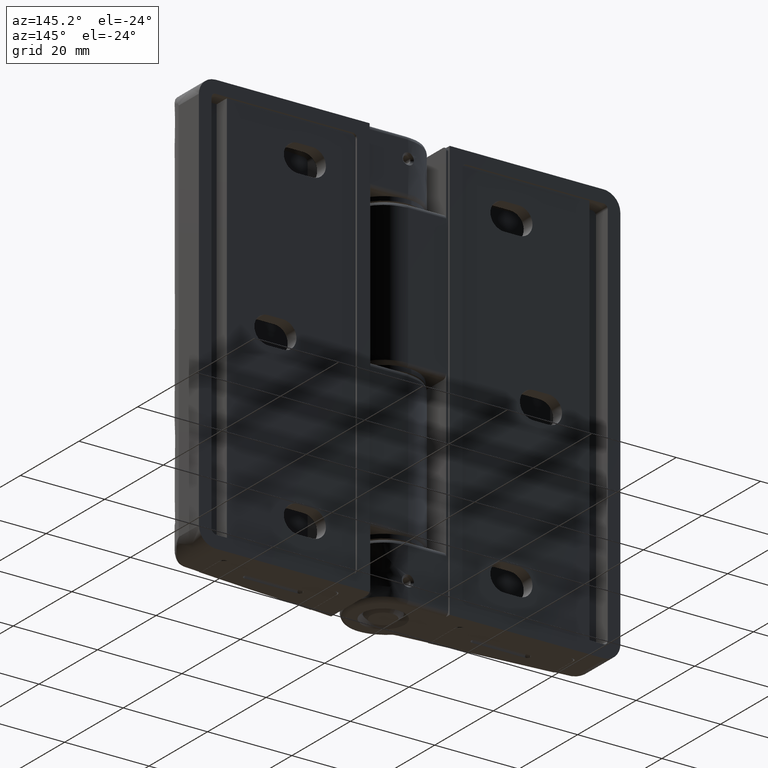
[diagram: clean part render]
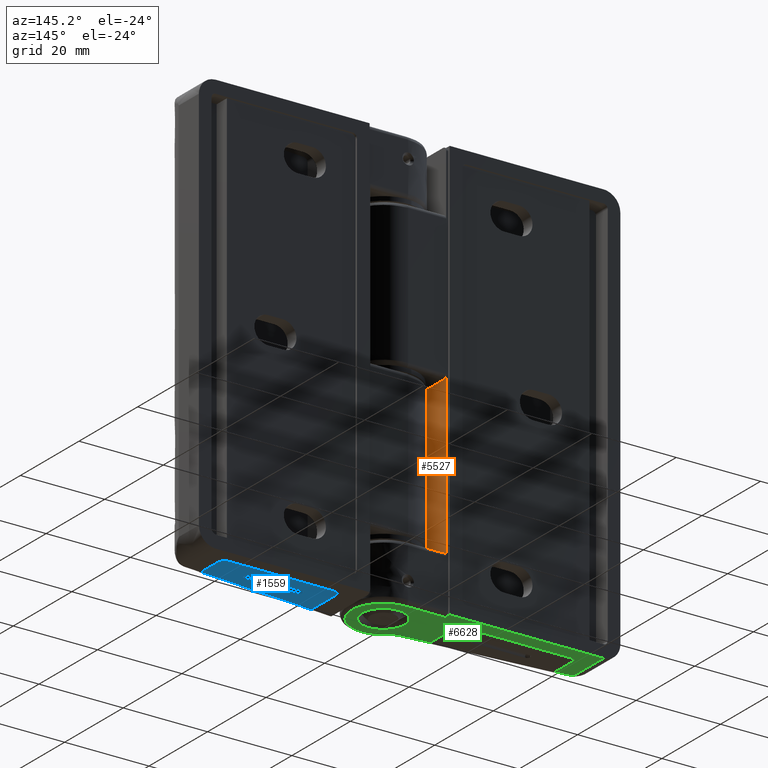
[diagram: same view with three faces highlighted in distinct colors, each labeled with its STEP entity id]
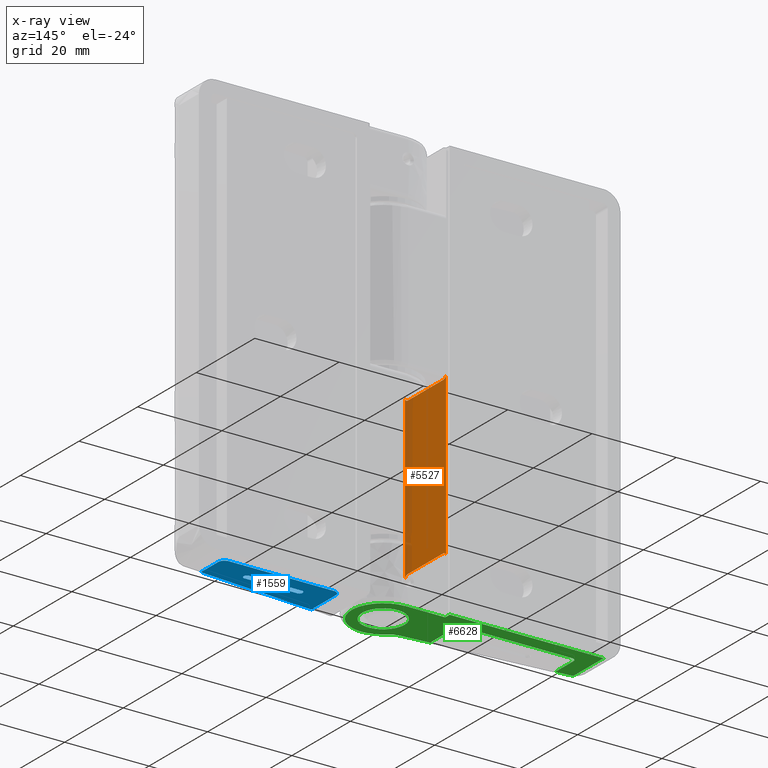
[diagram: x-ray of the same camera — body ghosted, the three highlighted faces saturated]
A machine part, auxiliary view with three faces highlighted in distinct colors.
The next image is the same camera in x-ray (body ghosted, the three faces saturated) — at least one of them is partly hidden behind the body in this view.
Their STEP definitions:

[orange] entity #5527 — the highlighted face is a freeform B-spline surface patch.
#4894=CARTESIAN_POINT('',(-9.0,7.500000000000000,50.500000000000000));
#4895=VERTEX_POINT('',#4894);
#4901=CARTESIAN_POINT('',(-9.0,8.500000000000000,51.500000000000000));
#4902=VERTEX_POINT('',#4901);
#4903=CARTESIAN_POINT('',(-9.0,8.500000000000000,51.500000000000000));
#4904=CARTESIAN_POINT('',(-9.000000000000002,8.500000000000002,50.499999999999993));
#4905=CARTESIAN_POINT('',(-9.0,7.500000000000000,50.499999999999993));
#4913=(BOUNDED_CURVE()B_SPLINE_CURVE(2,(#4903,#4904,#4905),.UNSPECIFIED.,.F.,.U.)CURVE()GEOMETRIC_REPRESENTATION_ITEM()QUASI_UNIFORM_CURVE()RATIONAL_B_SPLINE_CURVE((1.0,0.707106781186548,1.0))REPRESENTATION_ITEM(''));
#4914=EDGE_CURVE('',#4902,#4895,#4913,.T.);
#5086=CARTESIAN_POINT('',(-9.0,-4.583217351706750,50.500000000000000));
#5087=VERTEX_POINT('',#5086);
#5088=CARTESIAN_POINT('',(-9.0,-5.587037191302819,51.500000000000000));
#5089=VERTEX_POINT('',#5088);
#5090=CARTESIAN_POINT('',(-9.0,-4.583217351706750,50.499999999999993));
#5091=CARTESIAN_POINT('',(-9.0,-4.999013143446657,50.499999999999986));
#5092=CARTESIAN_POINT('',(-9.0,-5.293025167374758,50.792893218813440));
#5093=CARTESIAN_POINT('',(-9.0,-5.587037191302872,51.085786437626894));
#5094=CARTESIAN_POINT('',(-9.0,-5.587037191302872,51.500000000000000));
#5102=(BOUNDED_CURVE()B_SPLINE_CURVE(2,(#5090,#5091,#5092,#5093,#5094),.UNSPECIFIED.,.F.,.U.)B_SPLINE_CURVE_WITH_KNOTS((3,2,3),(0.0,0.500000000000000,1.0),.UNSPECIFIED.)CURVE()GEOMETRIC_REPRESENTATION_ITEM()RATIONAL_B_SPLINE_CURVE((1.0,0.923879532511359,1.0,0.923879532511359,1.0))REPRESENTATION_ITEM(''));
#5103=EDGE_CURVE('',#5087,#5089,#5102,.T.);
#5133=CARTESIAN_POINT('',(-9.0,-5.587037191302819,12.499999999999719));
#5134=VERTEX_POINT('',#5133);
#5135=CARTESIAN_POINT('',(-9.0,-4.583217351706750,13.500000000000000));
#5136=VERTEX_POINT('',#5135);
#5137=CARTESIAN_POINT('',(-9.0,-5.587037191302822,12.499999999999719));
#5138=CARTESIAN_POINT('',(-9.0,-5.587037191302939,12.914213562372892));
#5139=CARTESIAN_POINT('',(-9.0,-5.293025167374825,13.207106781186440));
#5140=CARTESIAN_POINT('',(-9.0,-4.999013143446704,13.500000000000000));
#5141=CARTESIAN_POINT('',(-9.0,-4.583217351706750,13.500000000000000));
#5149=(BOUNDED_CURVE()B_SPLINE_CURVE(2,(#5137,#5138,#5139,#5140,#5141),.UNSPECIFIED.,.F.,.U.)B_SPLINE_CURVE_WITH_KNOTS((3,2,3),(0.0,0.500000000000000,1.0),.UNSPECIFIED.)CURVE()GEOMETRIC_REPRESENTATION_ITEM()RATIONAL_B_SPLINE_CURVE((1.0,0.923879532511261,1.0,0.923879532511261,1.0))REPRESENTATION_ITEM(''));
#5150=EDGE_CURVE('',#5134,#5136,#5149,.T.);
#5344=CARTESIAN_POINT('',(-9.0,7.500000000000000,13.500000000000000));
#5345=VERTEX_POINT('',#5344);
#5346=CARTESIAN_POINT('',(-9.0,8.500000000000000,12.500000000000000));
#5347=VERTEX_POINT('',#5346);
#5348=CARTESIAN_POINT('',(-9.0,7.500000000000000,13.500000000000000));
#5349=CARTESIAN_POINT('',(-9.000000000000002,8.500000000000002,13.500000000000002));
#5350=CARTESIAN_POINT('',(-9.0,8.500000000000000,12.500000000000000));
#5358=(BOUNDED_CURVE()B_SPLINE_CURVE(2,(#5348,#5349,#5350),.UNSPECIFIED.,.F.,.U.)CURVE()GEOMETRIC_REPRESENTATION_ITEM()QUASI_UNIFORM_CURVE()RATIONAL_B_SPLINE_CURVE((1.0,0.707106781186548,1.0))REPRESENTATION_ITEM(''));
#5359=EDGE_CURVE('',#5345,#5347,#5358,.T.);
#5463=CARTESIAN_POINT('',(-9.0,-4.583217351706750,50.500000000000000));
#5464=CARTESIAN_POINT('',(-9.0,7.500000000000000,50.500000000000000));
#5465=QUASI_UNIFORM_CURVE('',1,(#5463,#5464),.UNSPECIFIED.,.F.,.U.);
#5466=EDGE_CURVE('',#5087,#4895,#5465,.T.);
#5486=CARTESIAN_POINT('',(-9.0,-4.583217351706750,13.500000000000000));
#5487=CARTESIAN_POINT('',(-9.0,7.500000000000000,13.500000000000000));
#5488=QUASI_UNIFORM_CURVE('',1,(#5486,#5487),.UNSPECIFIED.,.F.,.U.);
#5489=EDGE_CURVE('',#5136,#5345,#5488,.T.);
#5504=CARTESIAN_POINT('',(-9.0,-6.290684671704984,53.448049924410448));
#5505=CARTESIAN_POINT('',(-9.0,-6.290684671704984,10.551949029527760));
#5506=CARTESIAN_POINT('',(-9.0,9.203647858245946,53.448049924410448));
#5507=CARTESIAN_POINT('',(-9.0,9.203647858245946,10.551949029527760));
#5508=B_SPLINE_SURFACE_WITH_KNOTS('',1,1,((#5504,#5506),(#5505,#5507)),.UNSPECIFIED.,.F.,.F.,.U.,(2,2),(2,2),(0.0,42.896100894882693),(0.0,15.494332529950929),.UNSPECIFIED.);
#5509=CARTESIAN_POINT('',(-9.0,-5.587037191302819,51.500000000000000));
#5510=CARTESIAN_POINT('',(-9.0,-5.587037191302819,12.499999999999719));
#5511=QUASI_UNIFORM_CURVE('',1,(#5509,#5510),.UNSPECIFIED.,.F.,.U.);
#5512=EDGE_CURVE('',#5089,#5134,#5511,.T.);
#5513=ORIENTED_EDGE('',*,*,#5512,.T.);
#5514=ORIENTED_EDGE('',*,*,#5150,.T.);
#5515=ORIENTED_EDGE('',*,*,#5489,.T.);
#5516=ORIENTED_EDGE('',*,*,#5359,.T.);
#5517=CARTESIAN_POINT('',(-9.0,8.500000000000000,51.500000000000000));
#5518=CARTESIAN_POINT('',(-9.0,8.500000000000000,12.500000000000000));
#5519=QUASI_UNIFORM_CURVE('',1,(#5517,#5518),.UNSPECIFIED.,.F.,.U.);
#5520=EDGE_CURVE('',#4902,#5347,#5519,.T.);
#5521=ORIENTED_EDGE('',*,*,#5520,.F.);
#5522=ORIENTED_EDGE('',*,*,#4914,.T.);
#5523=ORIENTED_EDGE('',*,*,#5466,.F.);
#5524=ORIENTED_EDGE('',*,*,#5103,.T.);
#5525=EDGE_LOOP('',(#5513,#5514,#5515,#5516,#5521,#5522,#5523,#5524));
#5526=FACE_OUTER_BOUND('',#5525,.T.);
#5527=ADVANCED_FACE('',(#5526),#5508,.T.);

[blue] entity #1559 — the highlighted face is a freeform B-spline surface patch.
#680=CARTESIAN_POINT('',(-14.050000000000001,4.0,100.0));
#681=VERTEX_POINT('',#680);
#682=CARTESIAN_POINT('',(-15.550000000000001,5.500000000000000,100.0));
#683=VERTEX_POINT('',#682);
#684=CARTESIAN_POINT('',(-14.050000000000001,4.0,100.0));
#685=CARTESIAN_POINT('',(-14.050000000000001,5.500000000000001,100.0));
#686=CARTESIAN_POINT('',(-15.550000000000001,5.500000000000000,100.0));
#694=(BOUNDED_CURVE()B_SPLINE_CURVE(2,(#684,#685,#686),.UNSPECIFIED.,.F.,.U.)CURVE()GEOMETRIC_REPRESENTATION_ITEM()QUASI_UNIFORM_CURVE()RATIONAL_B_SPLINE_CURVE((1.0,0.707106781186548,1.0))REPRESENTATION_ITEM(''));
#695=EDGE_CURVE('',#681,#683,#694,.T.);
#741=CARTESIAN_POINT('',(-40.450000000000003,5.500000000000000,100.0));
#742=VERTEX_POINT('',#741);
#743=CARTESIAN_POINT('',(-41.950000000000003,4.0,100.0));
#744=VERTEX_POINT('',#743);
#745=CARTESIAN_POINT('',(-40.450000000000003,5.500000000000000,100.0));
#746=CARTESIAN_POINT('',(-41.949999999999996,5.500000000000001,100.0));
#747=CARTESIAN_POINT('',(-41.950000000000003,4.0,100.0));
#755=(BOUNDED_CURVE()B_SPLINE_CURVE(2,(#745,#746,#747),.UNSPECIFIED.,.F.,.U.)CURVE()GEOMETRIC_REPRESENTATION_ITEM()QUASI_UNIFORM_CURVE()RATIONAL_B_SPLINE_CURVE((1.0,0.707106781186548,1.0))REPRESENTATION_ITEM(''));
#756=EDGE_CURVE('',#742,#744,#755,.T.);
#926=CARTESIAN_POINT('',(-41.950000000000003,-1.901229080388365,100.0));
#927=VERTEX_POINT('',#926);
#948=CARTESIAN_POINT('',(-14.050000000000001,-4.342163449879365,100.0));
#949=VERTEX_POINT('',#948);
#963=CARTESIAN_POINT('',(-41.950000000000003,-1.901229080388365,100.0));
#964=CARTESIAN_POINT('',(-14.050000000000001,-4.342163449879365,100.0));
#965=QUASI_UNIFORM_CURVE('',1,(#963,#964),.UNSPECIFIED.,.F.,.U.);
#966=EDGE_CURVE('',#927,#949,#965,.T.);
#1311=CARTESIAN_POINT('',(-20.750000039269899,0.500000000000000,100.0));
#1312=VERTEX_POINT('',#1311);
#1313=CARTESIAN_POINT('',(-20.750000039269899,2.0,100.0));
#1314=VERTEX_POINT('',#1313);
#1330=CARTESIAN_POINT('',(-20.750000039269899,1.999999999999999,100.0));
#1331=CARTESIAN_POINT('',(-20.316987319924394,2.000000022672487,100.0));
#1332=CARTESIAN_POINT('',(-20.100480953706651,1.625000011336244,100.0));
#1333=CARTESIAN_POINT('',(-19.883974587488918,1.250000000000000,100.0));
#1334=CARTESIAN_POINT('',(-20.100480953706651,0.874999988663757,100.0));
#1335=CARTESIAN_POINT('',(-20.316987319924394,0.499999977327513,100.0));
#1336=CARTESIAN_POINT('',(-20.750000039269899,0.500000000000001,100.0));
#1344=(BOUNDED_CURVE()B_SPLINE_CURVE(2,(#1330,#1331,#1332,#1333,#1334,#1335,#1336),.UNSPECIFIED.,.F.,.U.)B_SPLINE_CURVE_WITH_KNOTS((3,2,2,3),(0.0,0.333333333333333,0.666666666666667,1.0),.UNSPECIFIED.)CURVE()GEOMETRIC_REPRESENTATION_ITEM()RATIONAL_B_SPLINE_CURVE((1.0,0.866025395057794,1.0,0.866025395057794,1.0,0.866025395057794,1.0))REPRESENTATION_ITEM(''));
#1345=EDGE_CURVE('',#1314,#1312,#1344,.T.);
#1382=CARTESIAN_POINT('',(-33.250000039269899,0.500000000000000,100.0));
#1383=VERTEX_POINT('',#1382);
#1384=CARTESIAN_POINT('',(-33.250000039269899,2.0,100.0));
#1385=VERTEX_POINT('',#1384);
#1401=CARTESIAN_POINT('',(-33.250000039269899,0.500000000000001,100.0));
#1402=CARTESIAN_POINT('',(-34.000000000000007,0.500000039269899,99.999999999999986));
#1403=CARTESIAN_POINT('',(-34.0,1.250000000000000,100.0));
#1404=CARTESIAN_POINT('',(-34.000000000000007,1.999999960730101,99.999999999999986));
#1405=CARTESIAN_POINT('',(-33.250000039269899,1.999999999999999,100.0));
#1413=(BOUNDED_CURVE()B_SPLINE_CURVE(2,(#1401,#1402,#1403,#1404,#1405),.UNSPECIFIED.,.F.,.U.)B_SPLINE_CURVE_WITH_KNOTS((3,2,3),(0.0,0.500000000000000,1.0),.UNSPECIFIED.)CURVE()GEOMETRIC_REPRESENTATION_ITEM()RATIONAL_B_SPLINE_CURVE((1.0,0.707106799698556,1.0,0.707106799698556,1.0))REPRESENTATION_ITEM(''));
#1414=EDGE_CURVE('',#1383,#1385,#1413,.T.);
#1438=CARTESIAN_POINT('',(-20.750000039269899,0.500000000000000,100.0));
#1439=CARTESIAN_POINT('',(-33.250000039269899,0.500000000000000,100.0));
#1440=QUASI_UNIFORM_CURVE('',1,(#1438,#1439),.UNSPECIFIED.,.F.,.U.);
#1441=EDGE_CURVE('',#1312,#1383,#1440,.T.);
#1444=CARTESIAN_POINT('',(-33.250000039269899,2.0,100.0));
#1445=CARTESIAN_POINT('',(-20.750000039269899,2.0,100.0));
#1446=QUASI_UNIFORM_CURVE('',1,(#1444,#1445),.UNSPECIFIED.,.F.,.U.);
#1447=EDGE_CURVE('',#1385,#1314,#1446,.T.);
#1471=CARTESIAN_POINT('',(-41.950000000000003,4.0,100.0));
#1472=CARTESIAN_POINT('',(-41.950000000000003,-1.901229080388365,100.0));
#1473=QUASI_UNIFORM_CURVE('',1,(#1471,#1472),.UNSPECIFIED.,.F.,.U.);
#1474=EDGE_CURVE('',#744,#927,#1473,.T.);
#1489=CARTESIAN_POINT('',(-15.550000000000001,5.500000000000000,100.0));
#1490=CARTESIAN_POINT('',(-40.450000000000003,5.500000000000000,100.0));
#1491=QUASI_UNIFORM_CURVE('',1,(#1489,#1490),.UNSPECIFIED.,.F.,.U.);
#1492=EDGE_CURVE('',#683,#742,#1491,.T.);
#1513=CARTESIAN_POINT('',(-14.050000000000001,-4.342163449879365,100.0));
#1514=CARTESIAN_POINT('',(-14.050000000000001,4.0,100.0));
#1515=QUASI_UNIFORM_CURVE('',1,(#1513,#1514),.UNSPECIFIED.,.F.,.U.);
#1516=EDGE_CURVE('',#949,#681,#1515,.T.);
#1540=CARTESIAN_POINT('',(-43.343605731640103,-4.833779679907194,100.0));
#1541=CARTESIAN_POINT('',(-12.656394268359900,-4.833779679907194,100.0));
#1542=CARTESIAN_POINT('',(-43.343605731640103,5.991616318023627,100.0));
#1543=CARTESIAN_POINT('',(-12.656394268359900,5.991616318023627,100.0));
#1544=B_SPLINE_SURFACE_WITH_KNOTS('',1,1,((#1540,#1542),(#1541,#1543)),.UNSPECIFIED.,.F.,.F.,.U.,(2,2),(2,2),(0.0,30.687211463280200),(0.0,10.825395997930819),.UNSPECIFIED.);
#1545=ORIENTED_EDGE('',*,*,#1492,.T.);
#1546=ORIENTED_EDGE('',*,*,#756,.T.);
#1547=ORIENTED_EDGE('',*,*,#1474,.T.);
#1548=ORIENTED_EDGE('',*,*,#966,.T.);
#1549=ORIENTED_EDGE('',*,*,#1516,.T.);
#1550=ORIENTED_EDGE('',*,*,#695,.T.);
#1551=EDGE_LOOP('',(#1545,#1546,#1547,#1548,#1549,#1550));
#1552=FACE_OUTER_BOUND('',#1551,.T.);
#1553=ORIENTED_EDGE('',*,*,#1441,.T.);
#1554=ORIENTED_EDGE('',*,*,#1414,.T.);
#1555=ORIENTED_EDGE('',*,*,#1447,.T.);
#1556=ORIENTED_EDGE('',*,*,#1345,.T.);
#1557=EDGE_LOOP('',(#1553,#1554,#1555,#1556));
#1558=FACE_BOUND('',#1557,.T.);
#1559=ADVANCED_FACE('',(#1552,#1558),#1544,.T.);

[green] entity #6628 — the highlighted face is a freeform B-spline surface patch.
#1921=CARTESIAN_POINT('',(3.465437195004880,3.638869336411837,-1.620683E-013));
#1922=VERTEX_POINT('',#1921);
#1928=CARTESIAN_POINT('',(5.025000000000000,0.0,0.0));
#1929=VERTEX_POINT('',#1928);
#1930=CARTESIAN_POINT('',(5.025000000000000,0.0,0.0));
#1931=CARTESIAN_POINT('',(5.025000000000001,2.153636849951511,0.0));
#1932=CARTESIAN_POINT('',(3.465437195004879,3.638869336411836,-1.620683E-013));
#1940=(BOUNDED_CURVE()B_SPLINE_CURVE(2,(#1930,#1931,#1932),.UNSPECIFIED.,.F.,.U.)B_SPLINE_CURVE_WITH_KNOTS((3,3),(0.0,0.128682976149205),.UNSPECIFIED.)CURVE()GEOMETRIC_REPRESENTATION_ITEM()RATIONAL_B_SPLINE_CURVE((1.0,0.849238515636658,0.853680523245690))REPRESENTATION_ITEM(''));
#1941=EDGE_CURVE('',#1929,#1922,#1940,.T.);
#1943=CARTESIAN_POINT('',(-5.025000000000000,0.0,0.0));
#1944=VERTEX_POINT('',#1943);
#1945=CARTESIAN_POINT('',(-5.025000000000000,0.0,0.0));
#1946=CARTESIAN_POINT('',(-5.025000000000000,-5.025000000000000,0.0));
#1947=CARTESIAN_POINT('',(0.0,-5.025000000000000,0.0));
#1948=CARTESIAN_POINT('',(5.025000000000000,-5.025000000000000,0.0));
#1949=CARTESIAN_POINT('',(5.025000000000000,0.0,0.0));
#1957=(BOUNDED_CURVE()B_SPLINE_CURVE(2,(#1945,#1946,#1947,#1948,#1949),.UNSPECIFIED.,.F.,.U.)B_SPLINE_CURVE_WITH_KNOTS((3,2,3),(0.500000000000000,0.750000000000000,1.0),.UNSPECIFIED.)CURVE()GEOMETRIC_REPRESENTATION_ITEM()RATIONAL_B_SPLINE_CURVE((1.0,0.707106781186547,1.0,0.707106781186547,1.0))REPRESENTATION_ITEM(''));
#1958=EDGE_CURVE('',#1944,#1929,#1957,.T.);
#1960=CARTESIAN_POINT('',(0.043850841862554,5.024808663522669,-1.337847E-010));
#1961=VERTEX_POINT('',#1960);
#1962=CARTESIAN_POINT('',(0.043850841862554,5.024808663522669,-1.337847E-010));
#1963=CARTESIAN_POINT('',(0.021925838856139,5.025000000000000,0.0));
#1964=CARTESIAN_POINT('',(0.0,5.025000000000000,0.0));
#1965=CARTESIAN_POINT('',(-5.025000000000000,5.025000000000000,0.0));
#1966=CARTESIAN_POINT('',(-5.025000000000000,0.0,0.0));
#1974=(BOUNDED_CURVE()B_SPLINE_CURVE(2,(#1962,#1963,#1964,#1965,#1966),.UNSPECIFIED.,.F.,.U.)B_SPLINE_CURVE_WITH_KNOTS((3,2,3),(0.248460105596162,0.250000000000000,0.500000000000000),.UNSPECIFIED.)CURVE()GEOMETRIC_REPRESENTATION_ITEM()RATIONAL_B_SPLINE_CURVE((0.996414027941064,0.998195901485708,1.0,0.707106781186547,1.0))REPRESENTATION_ITEM(''));
#1975=EDGE_CURVE('',#1961,#1944,#1974,.T.);
#2077=CARTESIAN_POINT('',(3.465437195004879,3.638869336411836,-1.620683E-013));
#2078=CARTESIAN_POINT('',(2.028321727537465,5.007490447559227,0.0));
#2079=CARTESIAN_POINT('',(0.043850841862554,5.024808663522669,-1.337847E-010));
#2087=(BOUNDED_CURVE()B_SPLINE_CURVE(2,(#2077,#2078,#2079),.UNSPECIFIED.,.F.,.U.)B_SPLINE_CURVE_WITH_KNOTS((3,3),(0.128682976149205,0.248460105596161),.UNSPECIFIED.)CURVE()GEOMETRIC_REPRESENTATION_ITEM()RATIONAL_B_SPLINE_CURVE((0.853680523245690,0.857815109935497,0.996414027941064))REPRESENTATION_ITEM(''));
#2088=EDGE_CURVE('',#1922,#1961,#2087,.T.);
#3959=CARTESIAN_POINT('',(-42.0,4.499999912733535,0.0));
#3960=VERTEX_POINT('',#3959);
#3961=CARTESIAN_POINT('',(-41.0,5.500000000000000,0.0));
#3962=VERTEX_POINT('',#3961);
#3963=CARTESIAN_POINT('',(-41.999999999999993,4.499999912733535,0.0));
#3964=CARTESIAN_POINT('',(-42.000000036146957,4.914213500666384,0.0));
#3965=CARTESIAN_POINT('',(-41.707106812039903,5.207106750333192,0.0));
#3966=CARTESIAN_POINT('',(-41.414213587932863,5.500000000000000,0.0));
#3967=CARTESIAN_POINT('',(-41.0,5.500000000000000,0.0));
#3975=(BOUNDED_CURVE()B_SPLINE_CURVE(2,(#3963,#3964,#3965,#3966,#3967),.UNSPECIFIED.,.F.,.U.)B_SPLINE_CURVE_WITH_KNOTS((3,2,3),(0.0,0.500000000000000,1.0),.UNSPECIFIED.)CURVE()GEOMETRIC_REPRESENTATION_ITEM()RATIONAL_B_SPLINE_CURVE((1.0,0.923879524162429,1.0,0.923879524162429,1.0))REPRESENTATION_ITEM(''));
#3976=EDGE_CURVE('',#3960,#3962,#3975,.T.);
#4015=CARTESIAN_POINT('',(-15.000000052359800,5.500000000000000,0.0));
#4016=VERTEX_POINT('',#4015);
#4017=CARTESIAN_POINT('',(-15.000000052359800,5.500000000000000,0.0));
#4018=CARTESIAN_POINT('',(-41.0,5.500000000000000,0.0));
#4019=QUASI_UNIFORM_CURVE('',1,(#4017,#4018),.UNSPECIFIED.,.F.,.U.);
#4020=EDGE_CURVE('',#4016,#3962,#4019,.T.);
#4052=CARTESIAN_POINT('',(-14.0,4.500000000000000,0.0));
#4053=VERTEX_POINT('',#4052);
#4054=CARTESIAN_POINT('',(-15.000000052359800,5.499999999999998,0.0));
#4055=CARTESIAN_POINT('',(-14.585786474650870,5.500000021688138,0.0));
#4056=CARTESIAN_POINT('',(-14.292893237325440,5.207106799698532,0.0));
#4057=CARTESIAN_POINT('',(-13.999999999999996,4.914213577708925,0.0));
#4058=CARTESIAN_POINT('',(-14.0,4.500000000000000,0.0));
#4066=(BOUNDED_CURVE()B_SPLINE_CURVE(2,(#4054,#4055,#4056,#4057,#4058),.UNSPECIFIED.,.F.,.U.)B_SPLINE_CURVE_WITH_KNOTS((3,2,3),(0.0,0.500000000000000,1.0),.UNSPECIFIED.)CURVE()GEOMETRIC_REPRESENTATION_ITEM()RATIONAL_B_SPLINE_CURVE((1.0,0.923879527501980,1.0,0.923879527501980,1.0))REPRESENTATION_ITEM(''));
#4067=EDGE_CURVE('',#4016,#4053,#4066,.T.);
#4501=CARTESIAN_POINT('',(-14.0,-4.145773916314075,0.0));
#4502=VERTEX_POINT('',#4501);
#4503=CARTESIAN_POINT('',(-14.0,-4.145773916314075,0.0));
#4504=CARTESIAN_POINT('',(-14.0,4.500000000000000,0.0));
#4505=QUASI_UNIFORM_CURVE('',1,(#4503,#4504),.UNSPECIFIED.,.F.,.U.);
#4506=EDGE_CURVE('',#4502,#4053,#4505,.T.);
#4580=CARTESIAN_POINT('',(-42.0,-1.696090678115215,0.0));
#4581=VERTEX_POINT('',#4580);
#4595=CARTESIAN_POINT('',(-42.0,4.499999912733535,0.0));
#4596=CARTESIAN_POINT('',(-42.0,-1.696090678115215,0.0));
#4597=QUASI_UNIFORM_CURVE('',1,(#4595,#4596),.UNSPECIFIED.,.F.,.U.);
#4598=EDGE_CURVE('',#3960,#4581,#4597,.T.);
#5635=CARTESIAN_POINT('',(-46.000007999999902,-1.340611749982294,0.0));
#5636=VERTEX_POINT('',#5635);
#5707=CARTESIAN_POINT('',(-45.805053181113401,-1.363191571035616,0.0));
#5708=VERTEX_POINT('',#5707);
#5736=CARTESIAN_POINT('',(-45.805053181113401,-1.363191571035611,0.0));
#5737=CARTESIAN_POINT('',(-45.902847248758434,-1.354635696453277,0.0));
#5738=CARTESIAN_POINT('',(-46.000007999999902,-1.340611749982295,0.0));
#5746=(BOUNDED_CURVE()B_SPLINE_CURVE(2,(#5736,#5737,#5738),.UNSPECIFIED.,.F.,.U.)CURVE()GEOMETRIC_REPRESENTATION_ITEM()QUASI_UNIFORM_CURVE()RATIONAL_B_SPLINE_CURVE((1.0,0.999606889775789,1.0))REPRESENTATION_ITEM(''));
#5747=EDGE_CURVE('',#5708,#5636,#5746,.T.);
#5769=CARTESIAN_POINT('',(-4.730546593830150,-5.819959529378361,0.0));
#5770=VERTEX_POINT('',#5769);
#5801=CARTESIAN_POINT('',(-7.448465492888190,-4.718959068690969,0.0));
#5802=VERTEX_POINT('',#5801);
#5816=CARTESIAN_POINT('',(-4.730546593830149,-5.819959529378359,0.0));
#5817=CARTESIAN_POINT('',(-5.920651059299528,-4.852625547585265,0.0));
#5818=CARTESIAN_POINT('',(-7.448465492888190,-4.718959068690964,0.0));
#5826=(BOUNDED_CURVE()B_SPLINE_CURVE(2,(#5816,#5817,#5818),.UNSPECIFIED.,.F.,.U.)CURVE()GEOMETRIC_REPRESENTATION_ITEM()QUASI_UNIFORM_CURVE()RATIONAL_B_SPLINE_CURVE((1.0,0.956037210801490,1.0))REPRESENTATION_ITEM(''));
#5827=EDGE_CURVE('',#5770,#5802,#5826,.T.);
#5861=CARTESIAN_POINT('',(0.0,7.500000000000000,0.0));
#5862=VERTEX_POINT('',#5861);
#5896=CARTESIAN_POINT('',(0.0,7.500000000000000,0.0));
#5897=CARTESIAN_POINT('',(5.553243957649200,7.500000000000001,0.0));
#5898=CARTESIAN_POINT('',(7.173620085998990,2.188418347060690,0.0));
#5899=CARTESIAN_POINT('',(8.793996214348780,-3.123163305878621,0.0));
#5900=CARTESIAN_POINT('',(4.186368482944872,-6.222886703532843,0.0));
#5901=CARTESIAN_POINT('',(-0.421259248459041,-9.322610101187067,0.0));
#5902=CARTESIAN_POINT('',(-4.730546593830147,-5.819959529378361,0.0));
#5910=(BOUNDED_CURVE()B_SPLINE_CURVE(2,(#5896,#5897,#5898,#5899,#5900,#5901,#5902),.UNSPECIFIED.,.F.,.U.)B_SPLINE_CURVE_WITH_KNOTS((3,2,2,3),(0.0,0.333333333333333,0.666666666666667,1.0),.UNSPECIFIED.)CURVE()GEOMETRIC_REPRESENTATION_ITEM()RATIONAL_B_SPLINE_CURVE((1.0,0.803675653775024,1.0,0.803675653775024,1.0,0.803675653775024,1.0))REPRESENTATION_ITEM(''));
#5911=EDGE_CURVE('',#5862,#5770,#5910,.T.);
#5932=CARTESIAN_POINT('',(-9.500000000000000,7.500000000000000,0.0));
#5933=VERTEX_POINT('',#5932);
#5953=CARTESIAN_POINT('',(-9.500000000000000,7.500000000000000,0.0));
#5954=CARTESIAN_POINT('',(0.0,7.500000000000000,0.0));
#5955=QUASI_UNIFORM_CURVE('',1,(#5953,#5954),.UNSPECIFIED.,.F.,.U.);
#5956=EDGE_CURVE('',#5933,#5862,#5955,.T.);
#6199=CARTESIAN_POINT('',(-46.000007999999902,9.0,0.0));
#6200=VERTEX_POINT('',#6199);
#6201=CARTESIAN_POINT('',(-46.000007999999902,-1.340611749982294,0.0));
#6202=CARTESIAN_POINT('',(-46.000007999999902,9.0,0.0));
#6203=QUASI_UNIFORM_CURVE('',1,(#6201,#6202),.UNSPECIFIED.,.F.,.U.);
#6204=EDGE_CURVE('',#5636,#6200,#6203,.T.);
#6341=CARTESIAN_POINT('',(-9.500000000000000,9.0,0.0));
#6342=VERTEX_POINT('',#6341);
#6343=CARTESIAN_POINT('',(-9.500000000000000,9.0,0.0));
#6344=CARTESIAN_POINT('',(-9.500000000000000,7.500000000000000,0.0));
#6345=QUASI_UNIFORM_CURVE('',1,(#6343,#6344),.UNSPECIFIED.,.F.,.U.);
#6346=EDGE_CURVE('',#6342,#5933,#6345,.T.);
#6589=CARTESIAN_POINT('',(-48.672015948095464,-8.316147996654404,0.0));
#6590=CARTESIAN_POINT('',(10.165656073130631,-8.316147996654404,0.0));
#6591=CARTESIAN_POINT('',(-48.672015948095464,9.823793537270637,0.0));
#6592=CARTESIAN_POINT('',(10.165656073130631,9.823793537270637,0.0));
#6593=B_SPLINE_SURFACE_WITH_KNOTS('',1,1,((#6589,#6591),(#6590,#6592)),.UNSPECIFIED.,.F.,.F.,.U.,(2,2),(2,2),(0.0,58.837672021226098),(0.0,18.139941533925040),.UNSPECIFIED.);
#6594=CARTESIAN_POINT('',(-7.448465492888190,-4.718959068690969,0.0));
#6595=CARTESIAN_POINT('',(-14.0,-4.145773916314075,0.0));
#6596=QUASI_UNIFORM_CURVE('',1,(#6594,#6595),.UNSPECIFIED.,.F.,.U.);
#6597=EDGE_CURVE('',#5802,#4502,#6596,.T.);
#6598=ORIENTED_EDGE('',*,*,#6597,.T.);
#6599=ORIENTED_EDGE('',*,*,#4506,.T.);
#6600=ORIENTED_EDGE('',*,*,#4067,.F.);
#6601=ORIENTED_EDGE('',*,*,#4020,.T.);
#6602=ORIENTED_EDGE('',*,*,#3976,.F.);
#6603=ORIENTED_EDGE('',*,*,#4598,.T.);
#6604=CARTESIAN_POINT('',(-42.0,-1.696090678115215,0.0));
#6605=CARTESIAN_POINT('',(-45.805053181113401,-1.363191571035616,0.0));
#6606=QUASI_UNIFORM_CURVE('',1,(#6604,#6605),.UNSPECIFIED.,.F.,.U.);
#6607=EDGE_CURVE('',#4581,#5708,#6606,.T.);
#6608=ORIENTED_EDGE('',*,*,#6607,.T.);
#6609=ORIENTED_EDGE('',*,*,#5747,.T.);
#6610=ORIENTED_EDGE('',*,*,#6204,.T.);
#6611=CARTESIAN_POINT('',(-46.000007999999902,9.0,0.0));
#6612=CARTESIAN_POINT('',(-9.500000000000000,9.0,0.0));
#6613=QUASI_UNIFORM_CURVE('',1,(#6611,#6612),.UNSPECIFIED.,.F.,.U.);
#6614=EDGE_CURVE('',#6200,#6342,#6613,.T.);
#6615=ORIENTED_EDGE('',*,*,#6614,.T.);
#6616=ORIENTED_EDGE('',*,*,#6346,.T.);
#6617=ORIENTED_EDGE('',*,*,#5956,.T.);
#6618=ORIENTED_EDGE('',*,*,#5911,.T.);
#6619=ORIENTED_EDGE('',*,*,#5827,.T.);
#6620=EDGE_LOOP('',(#6598,#6599,#6600,#6601,#6602,#6603,#6608,#6609,#6610,#6615,#6616,#6617,#6618,#6619));
#6621=FACE_OUTER_BOUND('',#6620,.T.);
#6622=ORIENTED_EDGE('',*,*,#1958,.T.);
#6623=ORIENTED_EDGE('',*,*,#1941,.T.);
#6624=ORIENTED_EDGE('',*,*,#2088,.T.);
#6625=ORIENTED_EDGE('',*,*,#1975,.T.);
#6626=EDGE_LOOP('',(#6622,#6623,#6624,#6625));
#6627=FACE_BOUND('',#6626,.T.);
#6628=ADVANCED_FACE('',(#6621,#6627),#6593,.F.);